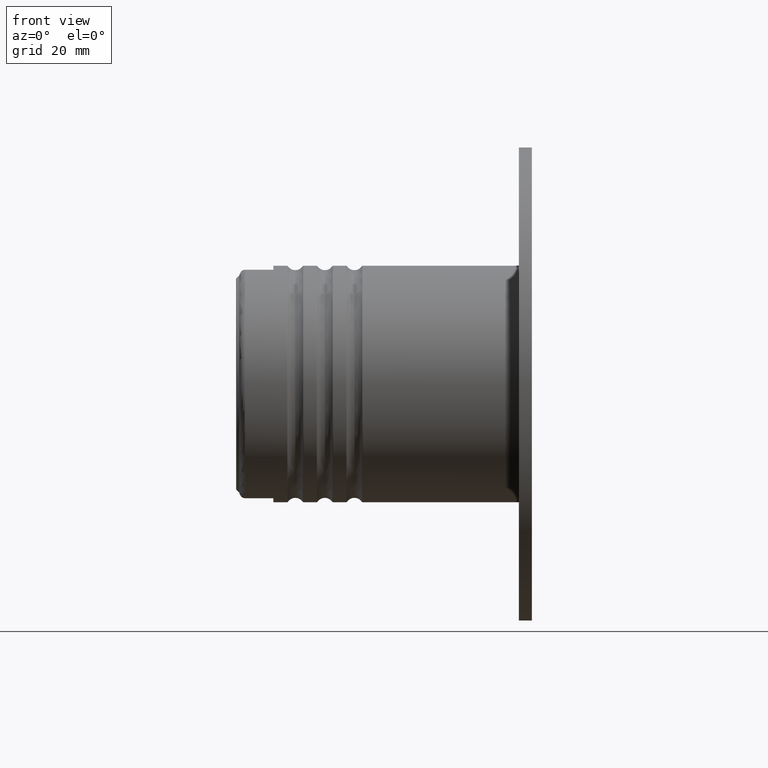
[diagram: clean part render]
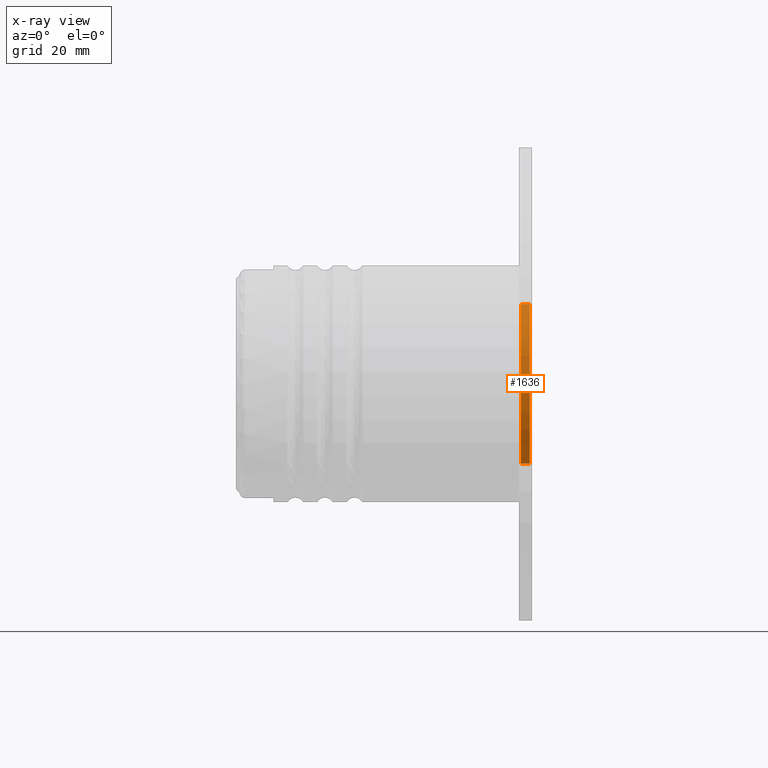
[diagram: x-ray — body ghosted, one internal face saturated and labeled with its STEP entity id]
A machine part, front view, then the same camera in x-ray: the body is ghosted and one INTERNAL B-rep face — a face not visible from any outside direction — is saturated and labeled: STEP entity #1636.
In plain terms, the highlighted cylindrical surface (partial cylindrical patch) has radius 13.5 mm, axis along (1, 0, 0).
Its self-contained STEP definition (entity closure, byte-faithful):
#345 = DIRECTION ( 'NONE',  ( 1.000000000000000000, 0.0000000000000000000, 0.0000000000000000000 ) ) ;
#477 = CARTESIAN_POINT ( 'NONE',  ( -1.600000000000004086, 1.653273178848926867E-15, 13.50000000000000000 ) ) ;
#570 = VECTOR ( 'NONE', #4497, 1000.000000000000000 ) ;
#615 = CARTESIAN_POINT ( 'NONE',  ( -1.600000000000004086, 0.0000000000000000000, 0.0000000000000000000 ) ) ;
#802 = VERTEX_POINT ( 'NONE', #4744 ) ;
#1048 = DIRECTION ( 'NONE',  ( 0.0000000000000000000, 0.0000000000000000000, -1.000000000000000000 ) ) ;
#1093 = EDGE_CURVE ( 'NONE', #802, #1999, #3654, .T. ) ;
#1252 = VERTEX_POINT ( 'NONE', #477 ) ;
#1372 = CIRCLE ( 'NONE', #3764, 13.50000000000000000 ) ;
#1398 = DIRECTION ( 'NONE',  ( 0.0000000000000000000, 0.0000000000000000000, 1.000000000000000000 ) ) ;
#1421 = ORIENTED_EDGE ( 'NONE', *, *, #3354, .T. ) ;
#1495 = LINE ( 'NONE', #1625, #2817 ) ;
#1501 = CARTESIAN_POINT ( 'NONE',  ( -0.1000000000000167422, 0.0000000000000000000, 0.0000000000000000000 ) ) ;
#1625 = CARTESIAN_POINT ( 'NONE',  ( -39.88376618407357910, 0.0000000000000000000, -13.50000000000000000 ) ) ;
#1636 = ADVANCED_FACE ( 'NONE', ( #4533 ), #2875, .F. ) ;
#1999 = VERTEX_POINT ( 'NONE', #4951 ) ;
#2082 = VERTEX_POINT ( 'NONE', #4613 ) ;
#2236 = ORIENTED_EDGE ( 'NONE', *, *, #3331, .T. ) ;
#2286 = EDGE_LOOP ( 'NONE', ( #2236, #1421, #3289, #4131 ) ) ;
#2422 = DIRECTION ( 'NONE',  ( 1.000000000000000000, -0.0000000000000000000, -0.0000000000000000000 ) ) ;
#2545 = DIRECTION ( 'NONE',  ( -1.000000000000000000, -0.0000000000000000000, -0.0000000000000000000 ) ) ;
#2817 = VECTOR ( 'NONE', #2422, 1000.000000000000000 ) ;
#2875 = CYLINDRICAL_SURFACE ( 'NONE', #3585, 13.50000000000000000 ) ;
#2996 = EDGE_CURVE ( 'NONE', #2082, #1999, #1495, .T. ) ;
#3289 = ORIENTED_EDGE ( 'NONE', *, *, #1093, .T. ) ;
#3316 = CARTESIAN_POINT ( 'NONE',  ( -39.88376618407357910, 1.653273178848926867E-15, 13.50000000000000000 ) ) ;
#3331 = EDGE_CURVE ( 'NONE', #2082, #1252, #1372, .T. ) ;
#3354 = EDGE_CURVE ( 'NONE', #1252, #802, #5019, .T. ) ;
#3513 = CARTESIAN_POINT ( 'NONE',  ( -39.88376618407357910, 0.0000000000000000000, 0.0000000000000000000 ) ) ;
#3585 = AXIS2_PLACEMENT_3D ( 'NONE', #3513, #4704, #4651 ) ;
#3654 = CIRCLE ( 'NONE', #4334, 13.50000000000000000 ) ;
#3764 = AXIS2_PLACEMENT_3D ( 'NONE', #615, #2545, #1398 ) ;
#4131 = ORIENTED_EDGE ( 'NONE', *, *, #2996, .F. ) ;
#4334 = AXIS2_PLACEMENT_3D ( 'NONE', #1501, #345, #1048 ) ;
#4497 = DIRECTION ( 'NONE',  ( 1.000000000000000000, -0.0000000000000000000, -0.0000000000000000000 ) ) ;
#4533 = FACE_OUTER_BOUND ( 'NONE', #2286, .T. ) ;
#4613 = CARTESIAN_POINT ( 'NONE',  ( -1.600000000000004086, 0.0000000000000000000, -13.50000000000000000 ) ) ;
#4651 = DIRECTION ( 'NONE',  ( 0.0000000000000000000, 0.0000000000000000000, -1.000000000000000000 ) ) ;
#4704 = DIRECTION ( 'NONE',  ( 1.000000000000000000, -0.0000000000000000000, -0.0000000000000000000 ) ) ;
#4744 = CARTESIAN_POINT ( 'NONE',  ( -0.1000000000000167422, 1.653273178848926867E-15, 13.50000000000000000 ) ) ;
#4951 = CARTESIAN_POINT ( 'NONE',  ( -0.1000000000000167422, 0.0000000000000000000, -13.50000000000000000 ) ) ;
#5019 = LINE ( 'NONE', #3316, #570 ) ;